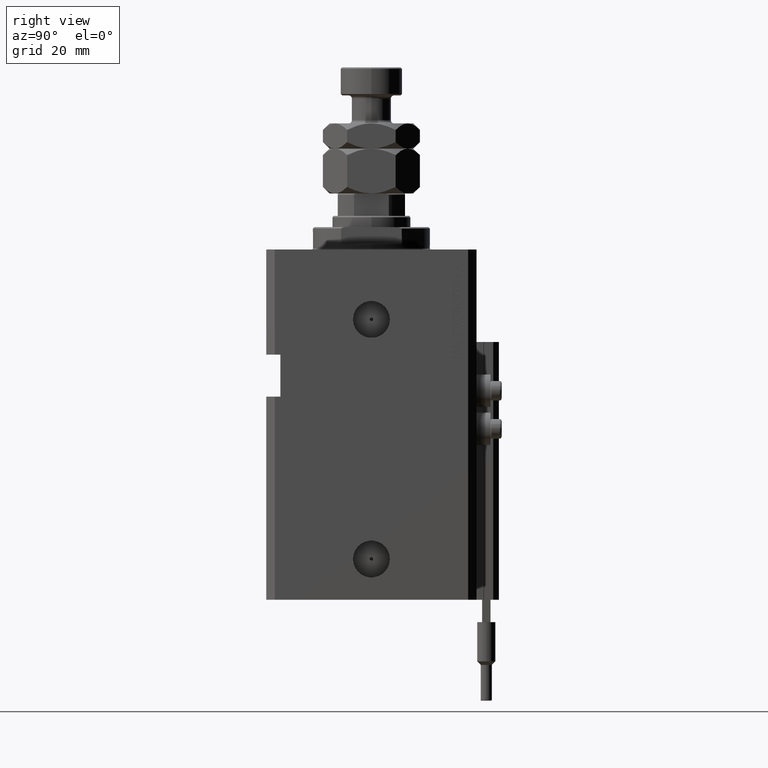
[diagram: clean part render]
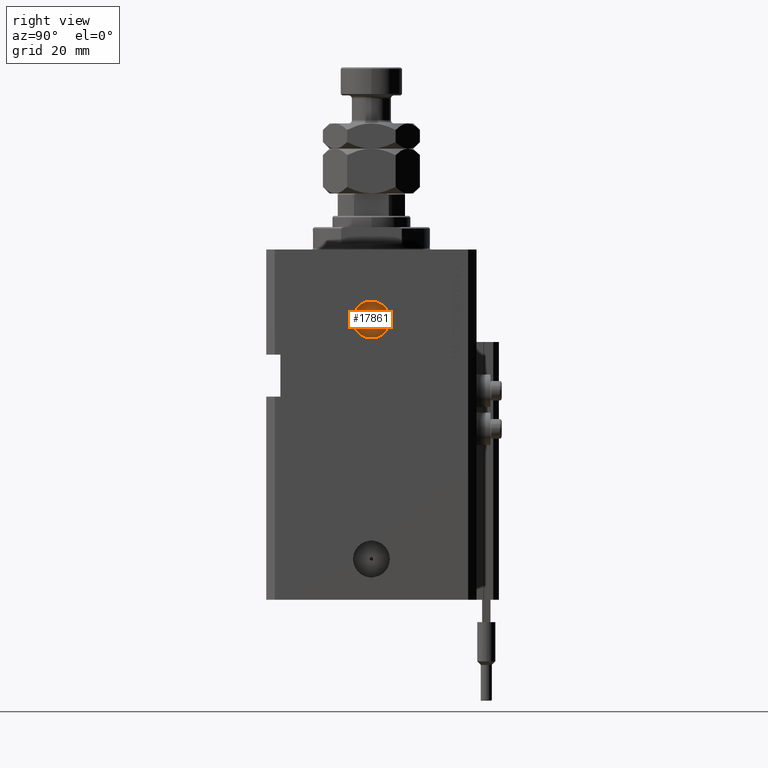
[diagram: same view with one face highlighted and labeled with its STEP entity id]
A machine part, right view. The second image highlights one B-rep face of the part: STEP entity #17861.
In plain terms, the highlighted planar face has unit normal (1, -0, 0).
Its self-contained STEP definition (entity closure, byte-faithful):
#1673 = CARTESIAN_POINT ( 'NONE',  ( 36.90000000000026148, -1.972788648655427251E-13, -25.00000000000000000 ) ) ;
#1830 = EDGE_LOOP ( 'NONE', ( #32089, #3195 ) ) ;
#3007 = ORIENTED_EDGE ( 'NONE', *, *, #11950, .T. ) ;
#3195 = ORIENTED_EDGE ( 'NONE', *, *, #26562, .F. ) ;
#3675 = CIRCLE ( 'NONE', #20872, 0.6249999999999987788 ) ;
#3781 = EDGE_LOOP ( 'NONE', ( #23916, #3007 ) ) ;
#6637 = DIRECTION ( 'NONE',  ( 1.000000000000000000, -1.334402673828349134E-14, 0.000000000000000000 ) ) ;
#7471 = CARTESIAN_POINT ( 'NONE',  ( 36.90000000000026148, -1.972788648655427503E-13, -25.00000000000000000 ) ) ;
#8086 = EDGE_CURVE ( 'NONE', #29415, #19403, #14162, .T. ) ;
#9446 = CARTESIAN_POINT ( 'NONE',  ( 36.90000000000026148, -1.972788648655427503E-13, -25.00000000000000000 ) ) ;
#11950 = EDGE_CURVE ( 'NONE', #12012, #44910, #46144, .T. ) ;
#12012 = VERTEX_POINT ( 'NONE', #41974 ) ;
#13299 = DIRECTION ( 'NONE',  ( 1.000000000000000000, -1.334402673828349134E-14, 0.000000000000000000 ) ) ;
#13402 = AXIS2_PLACEMENT_3D ( 'NONE', #9446, #13299, #36122 ) ;
#14162 = CIRCLE ( 'NONE', #16652, 0.6249999999999987788 ) ;
#14649 = PLANE ( 'NONE',  #41179 ) ;
#16652 = AXIS2_PLACEMENT_3D ( 'NONE', #1673, #17282, #32923 ) ;
#17282 = DIRECTION ( 'NONE',  ( 1.000000000000000000, -1.334402673828349134E-14, 0.000000000000000000 ) ) ;
#17861 = ADVANCED_FACE ( 'NONE', ( #26429, #38751 ), #14649, .T. ) ;
#19403 = VERTEX_POINT ( 'NONE', #38229 ) ;
#20872 = AXIS2_PLACEMENT_3D ( 'NONE', #49250, #48504, #28053 ) ;
#23916 = ORIENTED_EDGE ( 'NONE', *, *, #41797, .T. ) ;
#26429 = FACE_BOUND ( 'NONE', #1830, .T. ) ;
#26562 = EDGE_CURVE ( 'NONE', #19403, #29415, #3675, .T. ) ;
#26707 = CARTESIAN_POINT ( 'NONE',  ( 36.90000000000034674, 6.579999999999805560, -25.00000000000000000 ) ) ;
#28053 = DIRECTION ( 'NONE',  ( 1.110223024625158749E-14, 1.000000000000000000, 0.000000000000000000 ) ) ;
#29415 = VERTEX_POINT ( 'NONE', #48519 ) ;
#30208 = DIRECTION ( 'NONE',  ( 1.370906090437597808E-14, 1.000000000000000000, 0.000000000000000000 ) ) ;
#32089 = ORIENTED_EDGE ( 'NONE', *, *, #8086, .F. ) ;
#32204 = AXIS2_PLACEMENT_3D ( 'NONE', #41762, #6637, #30208 ) ;
#32923 = DIRECTION ( 'NONE',  ( 1.110223024625158749E-14, 1.000000000000000000, 0.000000000000000000 ) ) ;
#36122 = DIRECTION ( 'NONE',  ( 1.370906090437597808E-14, 1.000000000000000000, 0.000000000000000000 ) ) ;
#38229 = CARTESIAN_POINT ( 'NONE',  ( 36.90000000000025437, -0.6250000000001962874, -25.00000000000000000 ) ) ;
#38751 = FACE_OUTER_BOUND ( 'NONE', #3781, .T. ) ;
#41179 = AXIS2_PLACEMENT_3D ( 'NONE', #7471, #46449, #45929 ) ;
#41762 = CARTESIAN_POINT ( 'NONE',  ( 36.90000000000026148, -1.972788648655427503E-13, -25.00000000000000000 ) ) ;
#41797 = EDGE_CURVE ( 'NONE', #44910, #12012, #42866, .T. ) ;
#41974 = CARTESIAN_POINT ( 'NONE',  ( 36.90000000000016911, -6.580000000000199023, -25.00000000000000000 ) ) ;
#42866 = CIRCLE ( 'NONE', #32204, 6.580000000000002736 ) ;
#44910 = VERTEX_POINT ( 'NONE', #26707 ) ;
#45929 = DIRECTION ( 'NONE',  ( 1.334402673828349134E-14, 1.000000000000000000, 0.000000000000000000 ) ) ;
#46144 = CIRCLE ( 'NONE', #13402, 6.580000000000002736 ) ;
#46449 = DIRECTION ( 'NONE',  ( 1.000000000000000000, -1.334402673828349134E-14, 0.000000000000000000 ) ) ;
#48504 = DIRECTION ( 'NONE',  ( 1.000000000000000000, -1.334402673828349134E-14, 0.000000000000000000 ) ) ;
#48519 = CARTESIAN_POINT ( 'NONE',  ( 36.90000000000026859, 0.6249999999998014921, -25.00000000000000000 ) ) ;
#49250 = CARTESIAN_POINT ( 'NONE',  ( 36.90000000000026148, -1.972788648655427251E-13, -25.00000000000000000 ) ) ;